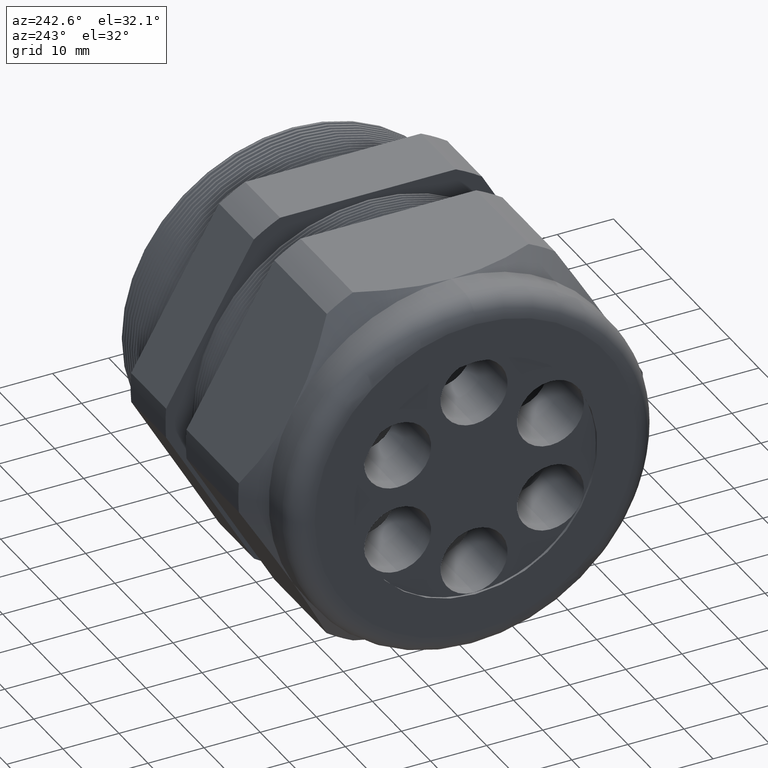
[diagram: clean part render]
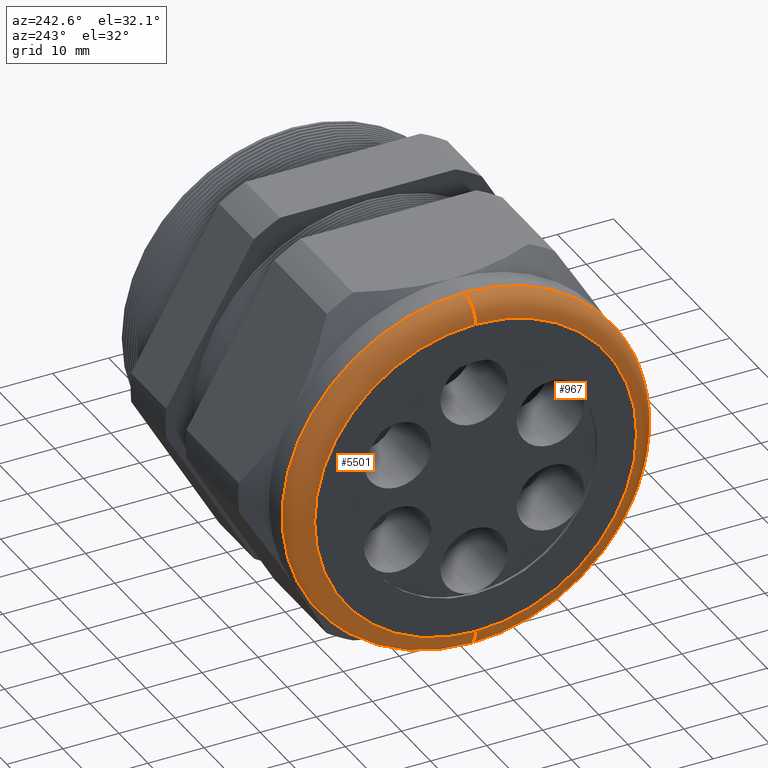
[diagram: same view with one multi-face feature highlighted, each face labeled with its STEP entity id]
A machine part, auxiliary view. The highlighted faces form ONE feature: a constant-radius fillet chain: 2 tangent blend faces with common blend radius 3.81 mm. The faces share edges in the B-rep.
Their STEP definitions:
[1] entity #967 (Torus):
#817 = EDGE_CURVE ( 'NONE', #5496, #5495, #3128, .T. ) ;
#834 = EDGE_CURVE ( 'NONE', #5493, #5488, #3159, .T. ) ;
#967 = ADVANCED_FACE ( 'NONE', ( #3323 ), #3322, .T. ) ;
#968 = EDGE_LOOP ( 'NONE', ( #969, #970, #971, #972 ) ) ;
#969 = ORIENTED_EDGE ( 'NONE', *, *, #5498, .F. ) ;
#970 = ORIENTED_EDGE ( 'NONE', *, *, #817, .F. ) ;
#971 = ORIENTED_EDGE ( 'NONE', *, *, #5490, .T. ) ;
#972 = ORIENTED_EDGE ( 'NONE', *, *, #834, .F. ) ;
#3064 = CARTESIAN_POINT ( 'NONE',  ( -2.089999999999999400, 0.0000000000000000000, 0.0000000000000000000 ) ) ;
#3125 = DIRECTION ( 'NONE',  ( 0.0000000000000000000, 0.0000000000000000000, 1.000000000000000000 ) ) ;
#3126 = DIRECTION ( 'NONE',  ( 1.000000000000000000, 0.0000000000000000000, 0.0000000000000000000 ) ) ;
#3127 = AXIS2_PLACEMENT_3D ( 'NONE', #3064, #3126, #3125 ) ;
#3128 = CIRCLE ( 'NONE', #3127, 1.280000000000000000 ) ;
#3155 = DIRECTION ( 'NONE',  ( 0.0000000000000000000, 0.0000000000000000000, 1.000000000000000000 ) ) ;
#3156 = DIRECTION ( 'NONE',  ( -1.000000000000000000, 0.0000000000000000000, 0.0000000000000000000 ) ) ;
#3157 = CARTESIAN_POINT ( 'NONE',  ( -2.239999999999999800, 0.0000000000000000000, 0.0000000000000000000 ) ) ;
#3158 = AXIS2_PLACEMENT_3D ( 'NONE', #3157, #3156, #3155 ) ;
#3159 = CIRCLE ( 'NONE', #3158, 1.129999999999999900 ) ;
#3322 = TOROIDAL_SURFACE ( 'NONE', #3385, 1.129999999999999900, 0.1499999999999999900 ) ;
#3323 = FACE_OUTER_BOUND ( 'NONE', #968, .T. ) ;
#3382 = DIRECTION ( 'NONE',  ( 0.0000000000000000000, 0.0000000000000000000, 1.000000000000000000 ) ) ;
#3383 = DIRECTION ( 'NONE',  ( -1.000000000000000000, 0.0000000000000000000, 0.0000000000000000000 ) ) ;
#3384 = CARTESIAN_POINT ( 'NONE',  ( -2.089999999999999400, 0.0000000000000000000, 0.0000000000000000000 ) ) ;
#3385 = AXIS2_PLACEMENT_3D ( 'NONE', #3384, #3383, #3382 ) ;
#4720 = AXIS2_PLACEMENT_3D ( 'NONE', #4783, #4782, #4781 ) ;
#4721 = CIRCLE ( 'NONE', #4720, 0.1500000000000000500 ) ;
#4722 = CARTESIAN_POINT ( 'NONE',  ( -2.089999999999999400, 1.567547902908612300E-016, 1.280000000000000000 ) ) ;
#4723 = CARTESIAN_POINT ( 'NONE',  ( -2.089999999999999400, 0.0000000000000000000, -1.280000000000000000 ) ) ;
#4729 = CARTESIAN_POINT ( 'NONE',  ( -2.239999999999999800, 1.475699392972560400E-016, -1.129999999999999900 ) ) ;
#4736 = DIRECTION ( 'NONE',  ( 0.0000000000000000000, 0.0000000000000000000, -1.000000000000000000 ) ) ;
#4737 = DIRECTION ( 'NONE',  ( 0.0000000000000000000, -1.000000000000000000, 0.0000000000000000000 ) ) ;
#4738 = CARTESIAN_POINT ( 'NONE',  ( -2.089999999999999400, 0.0000000000000000000, 1.129999999999999900 ) ) ;
#4739 = AXIS2_PLACEMENT_3D ( 'NONE', #4738, #4737, #4736 ) ;
#4740 = CIRCLE ( 'NONE', #4739, 0.1500000000000000500 ) ;
#4741 = CARTESIAN_POINT ( 'NONE',  ( -2.239999999999999800, 0.0000000000000000000, 1.129999999999999900 ) ) ;
#4781 = DIRECTION ( 'NONE',  ( 0.0000000000000000000, -1.224646799147352500E-016, 1.000000000000000000 ) ) ;
#4782 = DIRECTION ( 'NONE',  ( 0.0000000000000000000, 1.000000000000000000, 1.224646799147353200E-016 ) ) ;
#4783 = CARTESIAN_POINT ( 'NONE',  ( -2.089999999999999400, 1.383850883036509000E-016, -1.129999999999999900 ) ) ;
#5488 = VERTEX_POINT ( 'NONE', #4741 ) ;
#5490 = EDGE_CURVE ( 'NONE', #5496, #5488, #4740, .T. ) ;
#5493 = VERTEX_POINT ( 'NONE', #4729 ) ;
#5495 = VERTEX_POINT ( 'NONE', #4723 ) ;
#5496 = VERTEX_POINT ( 'NONE', #4722 ) ;
#5498 = EDGE_CURVE ( 'NONE', #5495, #5493, #4721, .T. ) ;
[2] entity #5501 (Torus):
#4720 = AXIS2_PLACEMENT_3D ( 'NONE', #4783, #4782, #4781 ) ;
#4721 = CIRCLE ( 'NONE', #4720, 0.1500000000000000500 ) ;
#4722 = CARTESIAN_POINT ( 'NONE',  ( -2.089999999999999400, 1.567547902908612300E-016, 1.280000000000000000 ) ) ;
#4723 = CARTESIAN_POINT ( 'NONE',  ( -2.089999999999999400, 0.0000000000000000000, -1.280000000000000000 ) ) ;
#4724 = DIRECTION ( 'NONE',  ( 0.0000000000000000000, 0.0000000000000000000, 1.000000000000000000 ) ) ;
#4725 = DIRECTION ( 'NONE',  ( -1.000000000000000000, 0.0000000000000000000, 0.0000000000000000000 ) ) ;
#4726 = CARTESIAN_POINT ( 'NONE',  ( -2.239999999999999800, 0.0000000000000000000, 0.0000000000000000000 ) ) ;
#4727 = AXIS2_PLACEMENT_3D ( 'NONE', #4726, #4725, #4724 ) ;
#4728 = CIRCLE ( 'NONE', #4727, 1.129999999999999900 ) ;
#4729 = CARTESIAN_POINT ( 'NONE',  ( -2.239999999999999800, 1.475699392972560400E-016, -1.129999999999999900 ) ) ;
#4736 = DIRECTION ( 'NONE',  ( 0.0000000000000000000, 0.0000000000000000000, -1.000000000000000000 ) ) ;
#4737 = DIRECTION ( 'NONE',  ( 0.0000000000000000000, -1.000000000000000000, 0.0000000000000000000 ) ) ;
#4738 = CARTESIAN_POINT ( 'NONE',  ( -2.089999999999999400, 0.0000000000000000000, 1.129999999999999900 ) ) ;
#4739 = AXIS2_PLACEMENT_3D ( 'NONE', #4738, #4737, #4736 ) ;
#4740 = CIRCLE ( 'NONE', #4739, 0.1500000000000000500 ) ;
#4741 = CARTESIAN_POINT ( 'NONE',  ( -2.239999999999999800, 0.0000000000000000000, 1.129999999999999900 ) ) ;
#4769 = DIRECTION ( 'NONE',  ( 0.0000000000000000000, 0.0000000000000000000, 1.000000000000000000 ) ) ;
#4770 = DIRECTION ( 'NONE',  ( -1.000000000000000000, 0.0000000000000000000, 0.0000000000000000000 ) ) ;
#4771 = CARTESIAN_POINT ( 'NONE',  ( -2.089999999999999400, 0.0000000000000000000, 0.0000000000000000000 ) ) ;
#4772 = AXIS2_PLACEMENT_3D ( 'NONE', #4771, #4770, #4769 ) ;
#4774 = TOROIDAL_SURFACE ( 'NONE', #4772, 1.129999999999999900, 0.1499999999999999900 ) ;
#4775 = FACE_OUTER_BOUND ( 'NONE', #5471, .T. ) ;
#4776 = DIRECTION ( 'NONE',  ( 0.0000000000000000000, 0.0000000000000000000, 1.000000000000000000 ) ) ;
#4777 = DIRECTION ( 'NONE',  ( 1.000000000000000000, 0.0000000000000000000, 0.0000000000000000000 ) ) ;
#4778 = CARTESIAN_POINT ( 'NONE',  ( -2.089999999999999400, 0.0000000000000000000, 0.0000000000000000000 ) ) ;
#4779 = AXIS2_PLACEMENT_3D ( 'NONE', #4778, #4777, #4776 ) ;
#4780 = CIRCLE ( 'NONE', #4779, 1.280000000000000000 ) ;
#4781 = DIRECTION ( 'NONE',  ( 0.0000000000000000000, -1.224646799147352500E-016, 1.000000000000000000 ) ) ;
#4782 = DIRECTION ( 'NONE',  ( 0.0000000000000000000, 1.000000000000000000, 1.224646799147353200E-016 ) ) ;
#4783 = CARTESIAN_POINT ( 'NONE',  ( -2.089999999999999400, 1.383850883036509000E-016, -1.129999999999999900 ) ) ;
#5471 = EDGE_LOOP ( 'NONE', ( #5499, #5497, #5492, #5489 ) ) ;
#5488 = VERTEX_POINT ( 'NONE', #4741 ) ;
#5489 = ORIENTED_EDGE ( 'NONE', *, *, #5490, .F. ) ;
#5490 = EDGE_CURVE ( 'NONE', #5496, #5488, #4740, .T. ) ;
#5492 = ORIENTED_EDGE ( 'NONE', *, *, #5494, .F. ) ;
#5493 = VERTEX_POINT ( 'NONE', #4729 ) ;
#5494 = EDGE_CURVE ( 'NONE', #5488, #5493, #4728, .T. ) ;
#5495 = VERTEX_POINT ( 'NONE', #4723 ) ;
#5496 = VERTEX_POINT ( 'NONE', #4722 ) ;
#5497 = ORIENTED_EDGE ( 'NONE', *, *, #5498, .T. ) ;
#5498 = EDGE_CURVE ( 'NONE', #5495, #5493, #4721, .T. ) ;
#5499 = ORIENTED_EDGE ( 'NONE', *, *, #5500, .F. ) ;
#5500 = EDGE_CURVE ( 'NONE', #5495, #5496, #4780, .T. ) ;
#5501 = ADVANCED_FACE ( 'NONE', ( #4775 ), #4774, .T. ) ;